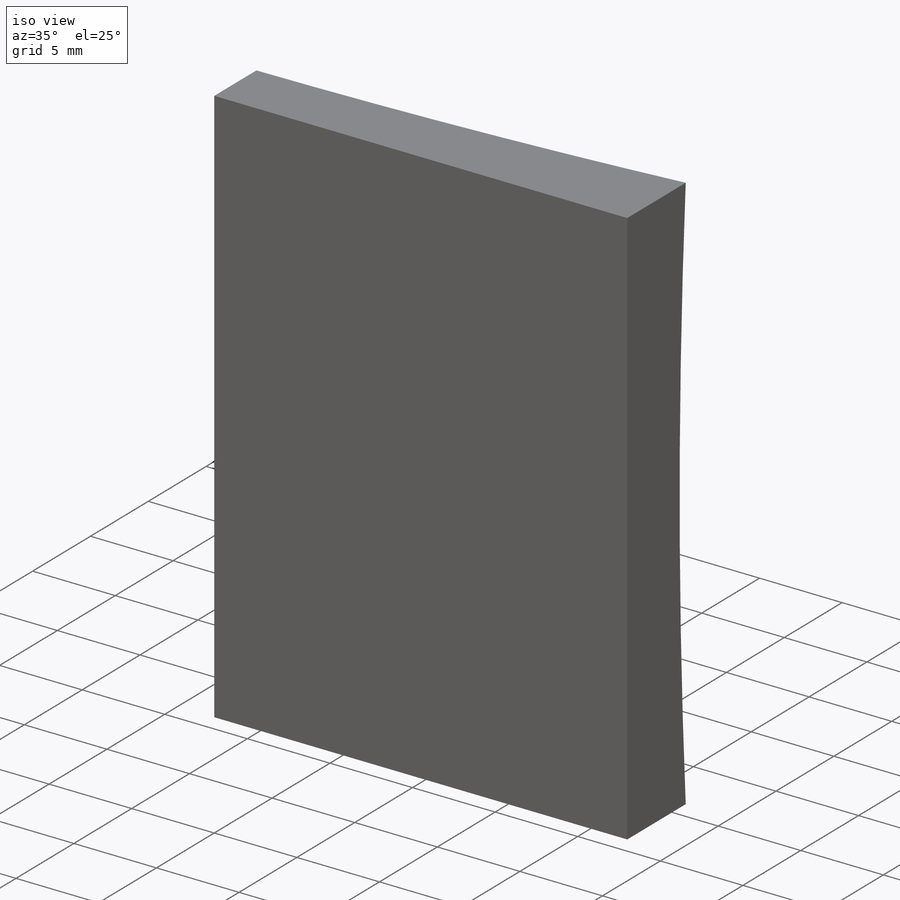
[diagram: iso view]
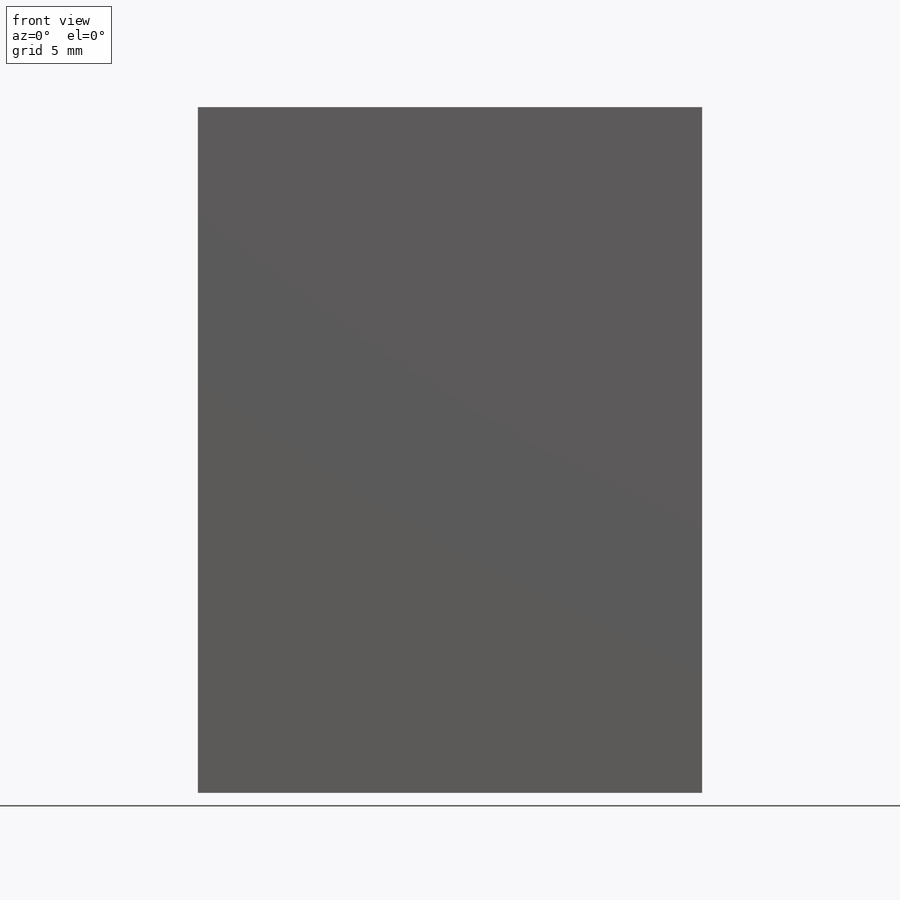
[diagram: front view]
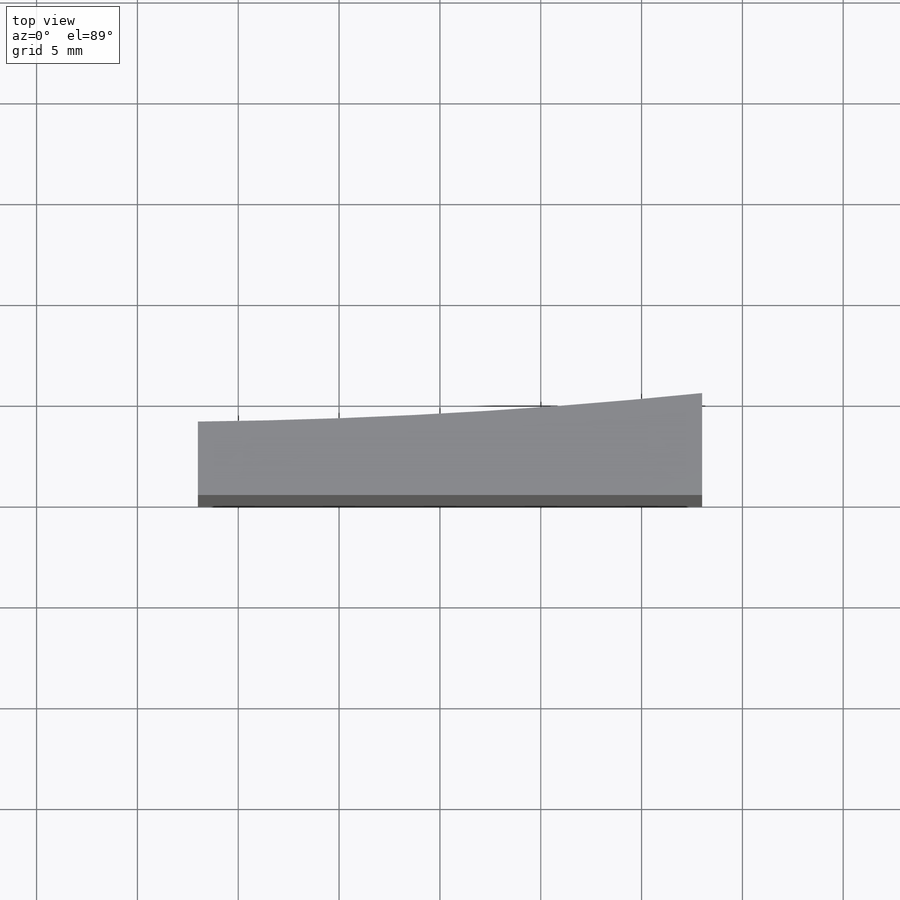
[diagram: top view]
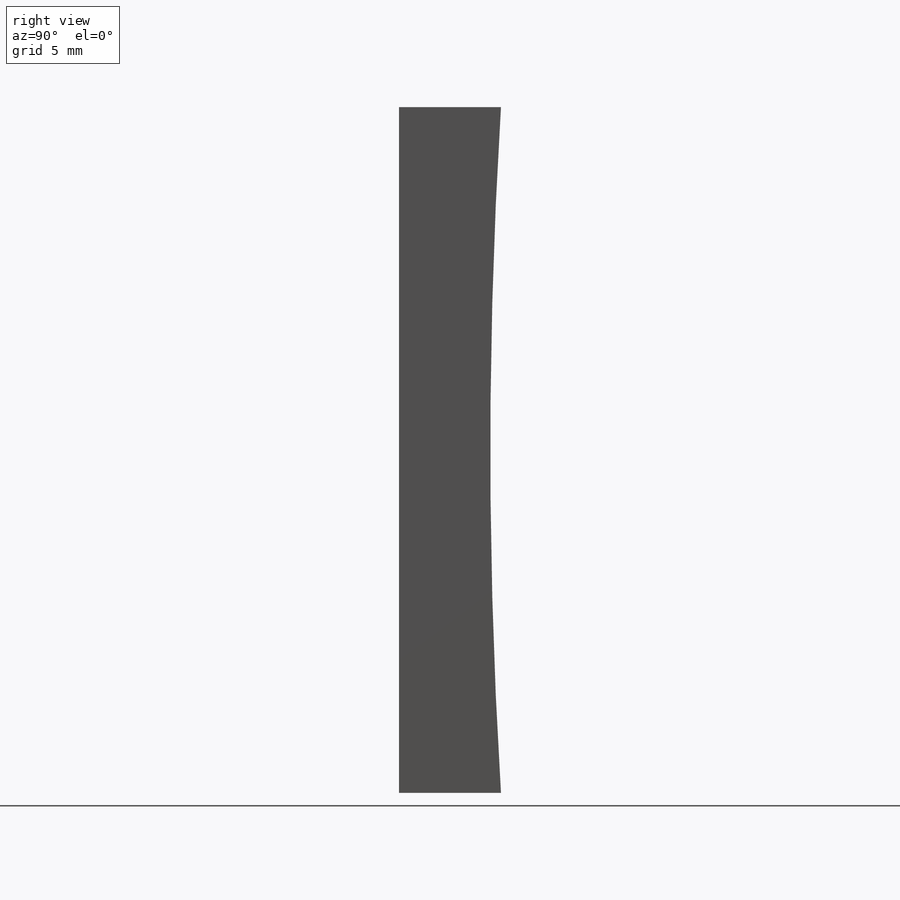
[diagram: right view]
SOLIDWORKS PART (.sldprt)
format: sldprt  version: not decoded by parser v0  size: 183,296 bytes
history: native  units: mm
features: sketch x10, plane x4, cut_extrude x2, chamfer x2, material x1, extrude x1, delete_body x1 (+12 scaffold rows collapsed)
feature tree (33):
  scaffold x12  (default folders/planes/origin — collapsed)
  material  "Стекло"
  plane  "Спереди"
  plane  "Сверху"
  plane  "Справа"
  sketch  "Эскиз1"  dims[D1=34.0mm D2=56.0mm D3=28.0mm]
  extrude  "Вытянуть1"  Depth=8mm
  sketch  "Эскиз4"  dims[c1.D1=550.8mm c1.D2=278.5mm c1.D3=17.0mm c2.D1=360.0deg c2.D3=21.0mm c2.D4=1.0mm c2.D7=0.0mm]
  sketch  "Эскиз5"  dims[D1=6.0mm D2=3.0mm]
  cut_extrude  "Вырез-Вытянуть1"  [1 undecoded]
  chamfer  "Фаска1"  Distance=0.15mm Angle=45deg
  chamfer  "Фаска2"  Distance=0.15mm Angle=45deg
  delete_body  "Тело-Удалить2"
  plane  "Плоскость1"  Offset=2mm
  sketch  "Трехмерный эскиз1"
  sketch  "Material_Int"
  sketch  "Material_Ext"
  sketch  "Surface"
  sketch  "Material_Int"
  sketch  "Material_Ext"
  sketch  "Эскиз6"  dims[D1=60.0mm]
  cut_extrude  "Вырез-Вытянуть2"  [1 undecoded]
decode coverage: 7 of 16 modeling features carry decoded parameters
note: 2 parameter values undecoded
note: suppression state not decoded; provenance and decode notes live in map.json
